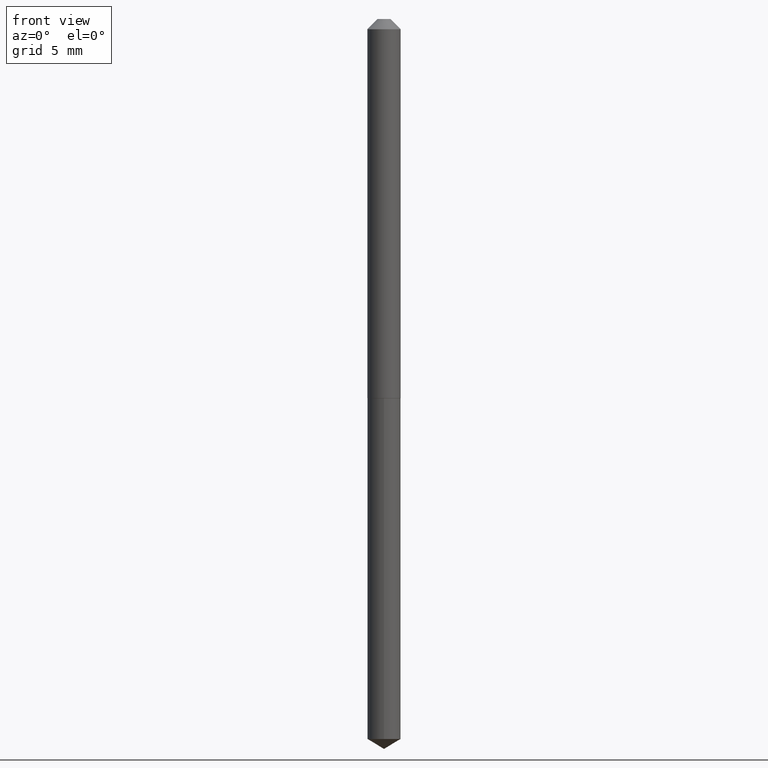
[diagram: clean part render]
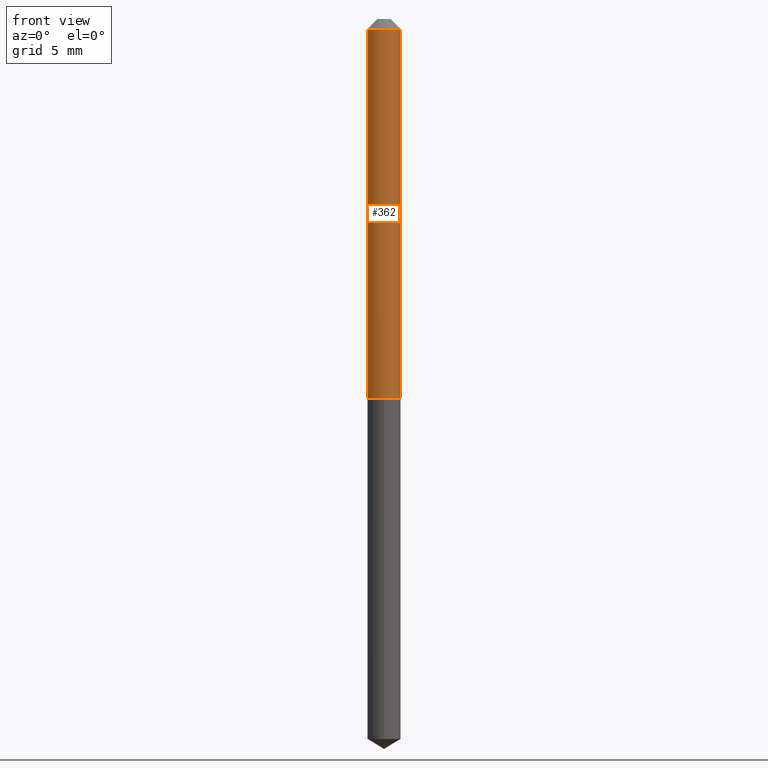
[diagram: same view with one face highlighted and labeled with its STEP entity id]
A machine part, front view. The second image highlights one B-rep face of the part: STEP entity #362.
In plain terms, the highlighted cylindrical surface (edge-blend (fillet) strip) has radius 1.3005 mm, axis along (-0, 0, 1).
Its self-contained STEP definition (entity closure, byte-faithful):
#1 = DIRECTION ( 'NONE',  ( -2.445468806185136597E-29, 3.491481338843145583E-15, 1.000000000000000000 ) ) ;
#3 = VECTOR ( 'NONE', #124, 39.37007874015748143 ) ;
#20 = VERTEX_POINT ( 'NONE', #208 ) ;
#41 = CYLINDRICAL_SURFACE ( 'NONE', #247, 0.05120000000000007184 ) ;
#42 = VERTEX_POINT ( 'NONE', #78 ) ;
#69 = DIRECTION ( 'NONE',  ( 1.000000000000000000, -6.982962677686267499E-15, 0.000000000000000000 ) ) ;
#76 = CARTESIAN_POINT ( 'NONE',  ( -0.05120000000000007184, 3.637978807091718056E-16, -2.518494766210515431E-30 ) ) ;
#78 = CARTESIAN_POINT ( 'NONE',  ( -0.05120000000000014123, -3.703428730909207693E-15, -1.164899999999999824 ) ) ;
#93 = EDGE_CURVE ( 'NONE', #201, #314, #156, .T. ) ;
#103 = DIRECTION ( 'NONE',  ( -2.445468806185136877E-29, 3.491481338843145188E-15, 1.000000000000000000 ) ) ;
#124 = DIRECTION ( 'NONE',  ( -2.445468806185136877E-29, 3.491481338843145188E-15, 1.000000000000000000 ) ) ;
#134 = CARTESIAN_POINT ( 'NONE',  ( 0.05120000000000001633, -4.666364809363860477E-16, -0.03125000000000020817 ) ) ;
#137 = LINE ( 'NONE', #76, #326 ) ;
#156 = LINE ( 'NONE', #355, #3 ) ;
#161 = DIRECTION ( 'NONE',  ( 1.000000000000000000, -6.982962677686266711E-15, 4.876176775795936353E-29 ) ) ;
#169 = ORIENTED_EDGE ( 'NONE', *, *, #340, .F. ) ;
#189 = AXIS2_PLACEMENT_3D ( 'NONE', #356, #1, #223 ) ;
#193 = CARTESIAN_POINT ( 'NONE',  ( 0.000000000000000000, 0.000000000000000000, 0.000000000000000000 ) ) ;
#194 = EDGE_CURVE ( 'NONE', #42, #201, #213, .T. ) ;
#201 = VERTEX_POINT ( 'NONE', #216 ) ;
#208 = CARTESIAN_POINT ( 'NONE',  ( -0.05120000000000001633, -1.724369821019441680E-15, -0.03125000000000020817 ) ) ;
#213 = CIRCLE ( 'NONE', #189, 0.05120000000000014123 ) ;
#214 = AXIS2_PLACEMENT_3D ( 'NONE', #229, #227, #69 ) ;
#216 = CARTESIAN_POINT ( 'NONE',  ( 0.05120000000000014123, -4.424754300715918073E-15, -1.164899999999999824 ) ) ;
#223 = DIRECTION ( 'NONE',  ( 1.000000000000000000, -6.982962677686273021E-15, 0.000000000000000000 ) ) ;
#227 = DIRECTION ( 'NONE',  ( -2.445468806185136597E-29, 3.491481338843145583E-15, 1.000000000000000000 ) ) ;
#229 = CARTESIAN_POINT ( 'NONE',  ( 7.642090019328602662E-31, -1.091087918388490267E-16, -0.03125000000000020817 ) ) ;
#239 = ORIENTED_EDGE ( 'NONE', *, *, #194, .T. ) ;
#247 = AXIS2_PLACEMENT_3D ( 'NONE', #193, #253, #161 ) ;
#253 = DIRECTION ( 'NONE',  ( -2.445468806185136597E-29, 3.491481338843145583E-15, 1.000000000000000000 ) ) ;
#287 = FACE_OUTER_BOUND ( 'NONE', #344, .T. ) ;
#290 = CIRCLE ( 'NONE', #214, 0.05120000000000001633 ) ;
#312 = ORIENTED_EDGE ( 'NONE', *, *, #376, .F. ) ;
#314 = VERTEX_POINT ( 'NONE', #134 ) ;
#326 = VECTOR ( 'NONE', #103, 39.37007874015748143 ) ;
#340 = EDGE_CURVE ( 'NONE', #42, #20, #137, .T. ) ;
#344 = EDGE_LOOP ( 'NONE', ( #169, #239, #352, #312 ) ) ;
#352 = ORIENTED_EDGE ( 'NONE', *, *, #93, .T. ) ;
#355 = CARTESIAN_POINT ( 'NONE',  ( 0.05120000000000007184, -3.575276890975373415E-16, 2.496602509207522887E-30 ) ) ;
#356 = CARTESIAN_POINT ( 'NONE',  ( 2.848726612325065508E-29, -4.067226611618379942E-15, -1.164899999999999824 ) ) ;
#362 = ADVANCED_FACE ( 'NONE', ( #287 ), #41, .T. ) ;
#376 = EDGE_CURVE ( 'NONE', #20, #314, #290, .T. ) ;